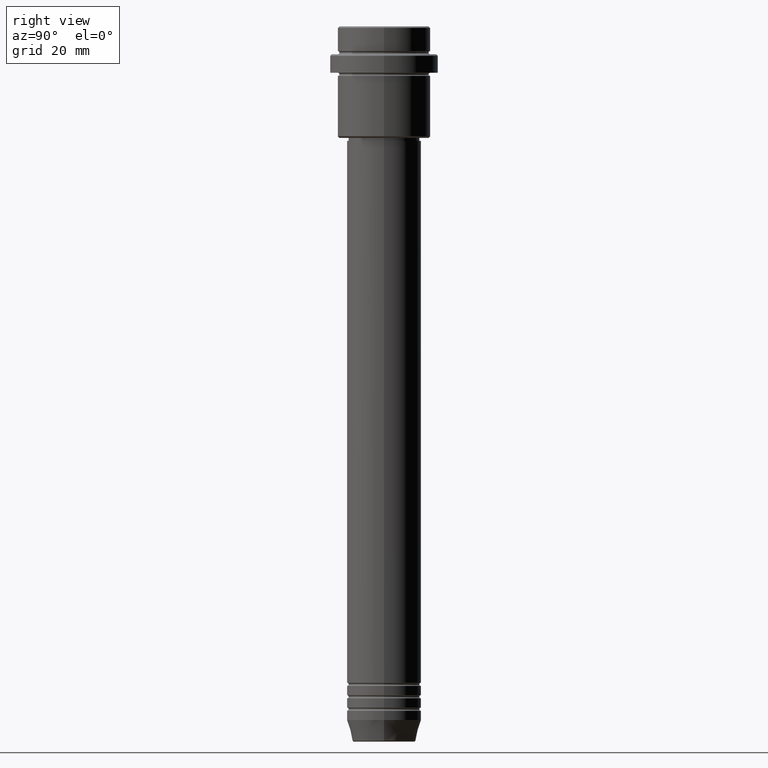
[diagram: clean part render]
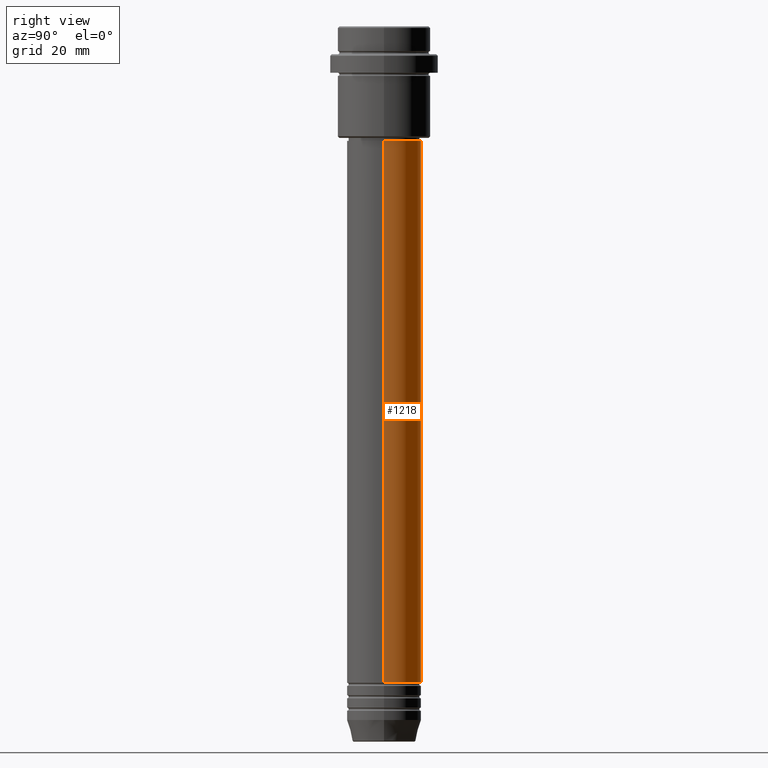
[diagram: same view with one face highlighted and labeled with its STEP entity id]
A machine part, right view. The second image highlights one B-rep face of the part: STEP entity #1218.
In plain terms, the highlighted cylindrical surface (partial cylindrical patch) has radius 12 mm, axis along (-0, -0, 1).
Its self-contained STEP definition (entity closure, byte-faithful):
#57 = ORIENTED_EDGE ( 'NONE', *, *, #1013, .F. ) ;
#70 = DIRECTION ( 'NONE',  ( -0.000000000000000000, -0.000000000000000000, 1.000000000000000000 ) ) ;
#117 = ORIENTED_EDGE ( 'NONE', *, *, #584, .T. ) ;
#140 = ORIENTED_EDGE ( 'NONE', *, *, #454, .F. ) ;
#195 = CARTESIAN_POINT ( 'NONE',  ( -11.99999999999999822, 1.469576158976823750E-15, -37.00000000000001421 ) ) ;
#210 = EDGE_CURVE ( 'NONE', #388, #778, #831, .T. ) ;
#217 = AXIS2_PLACEMENT_3D ( 'NONE', #974, #758, #1194 ) ;
#225 = ORIENTED_EDGE ( 'NONE', *, *, #210, .T. ) ;
#293 = CARTESIAN_POINT ( 'NONE',  ( 12.00000000000000000, 0.000000000000000000, -211.9999999999999432 ) ) ;
#388 = VERTEX_POINT ( 'NONE', #293 ) ;
#400 = CIRCLE ( 'NONE', #902, 11.99999999999999822 ) ;
#443 = CARTESIAN_POINT ( 'NONE',  ( 12.00000000000000000, 0.000000000000000000, 0.000000000000000000 ) ) ;
#454 = EDGE_CURVE ( 'NONE', #1336, #1086, #400, .T. ) ;
#517 = DIRECTION ( 'NONE',  ( 1.000000000000000000, 0.000000000000000000, 0.000000000000000000 ) ) ;
#558 = LINE ( 'NONE', #443, #1010 ) ;
#584 = EDGE_CURVE ( 'NONE', #778, #1086, #936, .T. ) ;
#608 = CYLINDRICAL_SURFACE ( 'NONE', #1014, 12.00000000000000000 ) ;
#715 = CARTESIAN_POINT ( 'NONE',  ( 0.000000000000000000, 0.000000000000000000, 0.000000000000000000 ) ) ;
#758 = DIRECTION ( 'NONE',  ( -0.000000000000000000, -0.000000000000000000, 1.000000000000000000 ) ) ;
#778 = VERTEX_POINT ( 'NONE', #1208 ) ;
#811 = VECTOR ( 'NONE', #1388, 1000.000000000000000 ) ;
#831 = CIRCLE ( 'NONE', #217, 12.00000000000000000 ) ;
#902 = AXIS2_PLACEMENT_3D ( 'NONE', #1309, #1062, #517 ) ;
#936 = LINE ( 'NONE', #965, #811 ) ;
#956 = DIRECTION ( 'NONE',  ( 1.000000000000000000, 0.000000000000000000, 0.000000000000000000 ) ) ;
#965 = CARTESIAN_POINT ( 'NONE',  ( -12.00000000000000000, 1.469576158976823947E-15, 0.000000000000000000 ) ) ;
#974 = CARTESIAN_POINT ( 'NONE',  ( 0.000000000000000000, 0.000000000000000000, -211.9999999999999432 ) ) ;
#1010 = VECTOR ( 'NONE', #1077, 1000.000000000000000 ) ;
#1013 = EDGE_CURVE ( 'NONE', #388, #1336, #558, .T. ) ;
#1014 = AXIS2_PLACEMENT_3D ( 'NONE', #715, #70, #956 ) ;
#1042 = FACE_OUTER_BOUND ( 'NONE', #1334, .T. ) ;
#1062 = DIRECTION ( 'NONE',  ( -0.000000000000000000, -0.000000000000000000, 1.000000000000000000 ) ) ;
#1077 = DIRECTION ( 'NONE',  ( -0.000000000000000000, -0.000000000000000000, 1.000000000000000000 ) ) ;
#1086 = VERTEX_POINT ( 'NONE', #195 ) ;
#1194 = DIRECTION ( 'NONE',  ( 1.000000000000000000, 0.000000000000000000, 0.000000000000000000 ) ) ;
#1208 = CARTESIAN_POINT ( 'NONE',  ( -12.00000000000000000, 1.469576158976823947E-15, -211.9999999999999432 ) ) ;
#1218 = ADVANCED_FACE ( 'NONE', ( #1042 ), #608, .T. ) ;
#1309 = CARTESIAN_POINT ( 'NONE',  ( 0.000000000000000000, 0.000000000000000000, -37.00000000000001421 ) ) ;
#1334 = EDGE_LOOP ( 'NONE', ( #225, #117, #140, #57 ) ) ;
#1336 = VERTEX_POINT ( 'NONE', #1410 ) ;
#1388 = DIRECTION ( 'NONE',  ( -0.000000000000000000, -0.000000000000000000, 1.000000000000000000 ) ) ;
#1410 = CARTESIAN_POINT ( 'NONE',  ( 11.99999999999999822, 0.000000000000000000, -37.00000000000001421 ) ) ;